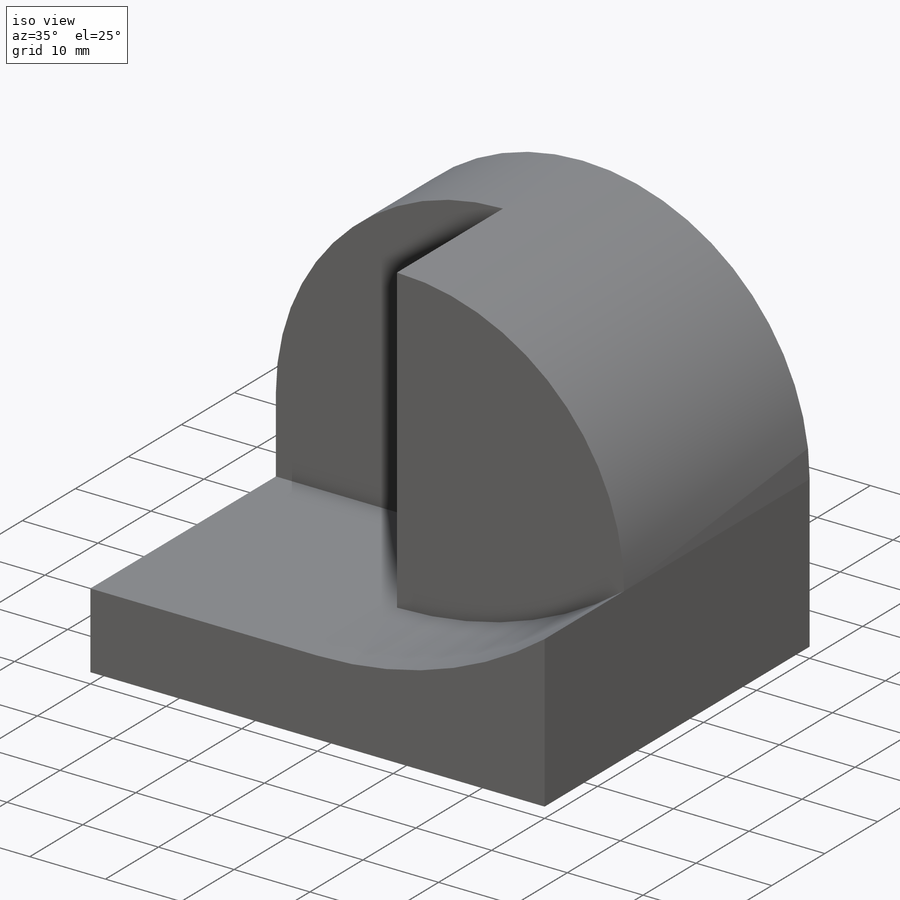
[diagram: iso view]
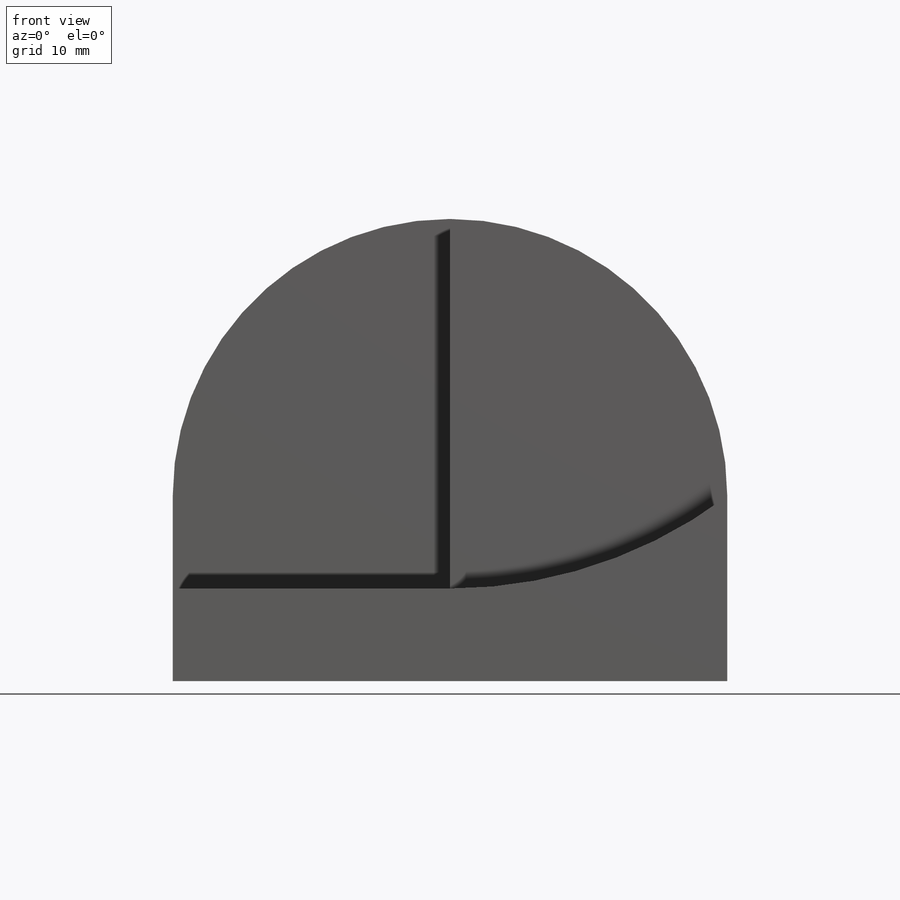
[diagram: front view]
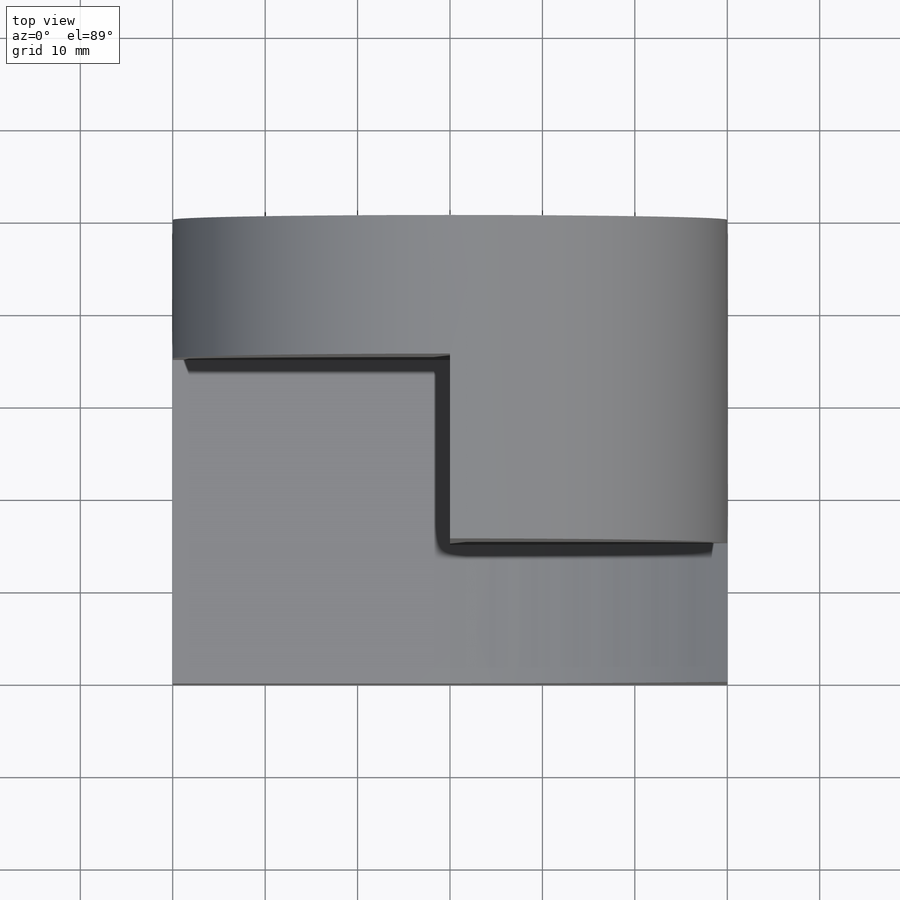
[diagram: top view]
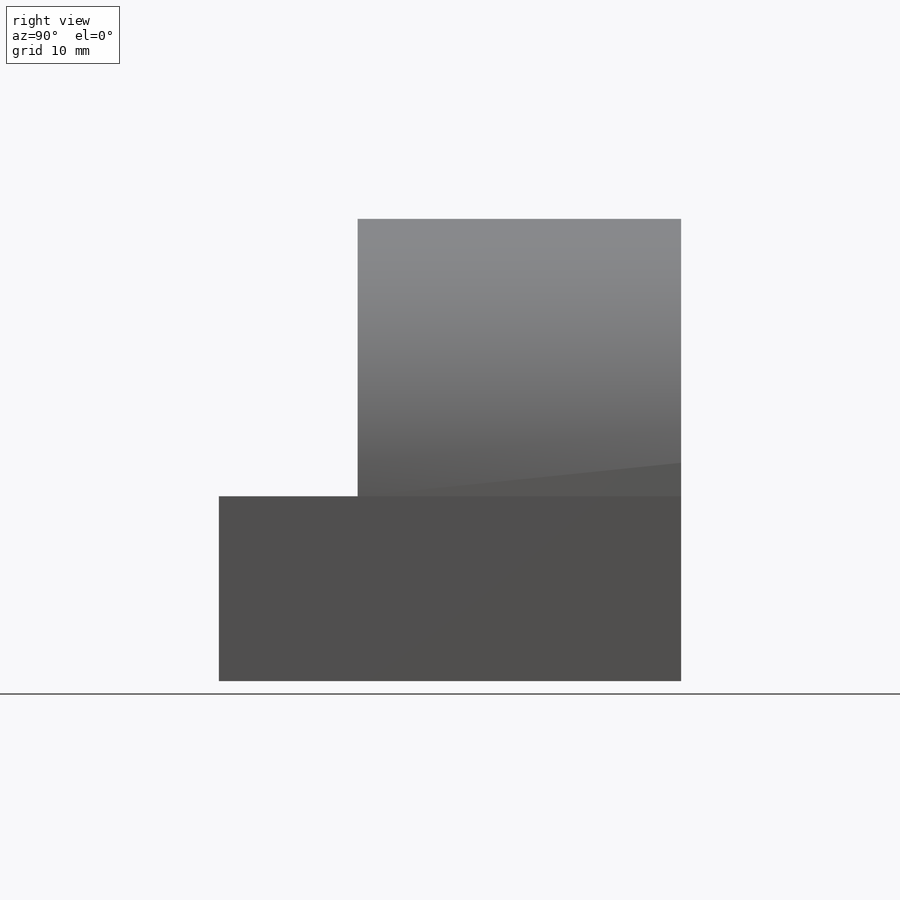
[diagram: right view]
SOLIDWORKS PART (.sldprt)
format: sldprt  version: not decoded by parser v0  size: 194,560 bytes
history: native  units: mm
features: sketch x6, extrude x5, material x1, cut_extrude x1 (+13 scaffold rows collapsed)
feature tree (26):
  scaffold x13  (default folders/planes/origin — collapsed)
  material  "Material <not specified>"
  sketch  "Sketch2"  dims[c1.D1=~26.810769mm c1.D2=~54.831046mm c2.D1=60.0mm c2.D2=10.0mm]
  extrude  "Boss-Extrude10"  Depth=50mm
  sketch  "Sketch9"  dims[D1=30.0mm D2=10.0mm D3=40.0mm D4=30.0mm D5=30.0mm D6=30.0mm]
  extrude  "Boss-Extrude11"  Depth=15mm
  sketch  "Sketch10"  dims[D1=30.0mm D2=10.0mm D3=30.0mm D4=30.0mm]
  extrude  "Boss-Extrude12"  Depth=35mm
  sketch  "Sketch12"  dims[c1.D2=~33.366504mm c1.D1=10.0mm c2.D2=30.0mm]
  extrude  "Boss-Extrude14"  Depth=50mm
  sketch  "Sketch13"  dims[D1=30.0mm]
  extrude  "Boss-Extrude18"  Depth=35mm
  sketch  "Sketch14"  dims[D1=10.0mm D2=30.0mm]
  cut_extrude  "Cut-Extrude1"  Depth=20mm
decode coverage: 12 of 12 modeling features carry decoded parameters
note: ~ marks probable driven/reference dimensions
note: suppression state not decoded; provenance and decode notes live in map.json
